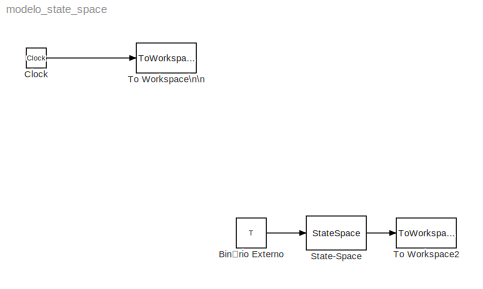
MODEL modelo_state_space
KIND model
BLOCK [Constant] Binário Externo
  SID = 20
  Value = T
BLOCK [Clock] Clock
  SID = 1
BLOCK [StateSpace] State-Space
  A = A
  B = B
  C = C
  D = [0; 0]
  Ports = [1, 1]
  SID = 14
  X0 = x0
BLOCK [ToWorkspace] To Workspace2
  FixptAsFi = on
  MaxDataPoints = inf
  Ports = [1]
  SID = 10
  SampleTime = -1
  Save2DSignal = 3-D array (concatenate along third dimension)
  VariableName = y
BLOCK [ToWorkspace] To Workspace\n\n
  FixptAsFi = on
  MaxDataPoints = inf
  Ports = [1]
  SID = 2
  SampleTime = -1
  Save2DSignal = 3-D array (concatenate along third dimension)
  VariableName = t
LINE Binário Externo:1 -> State-Space:1
LINE Clock:1 -> To Workspace\n\n:1
LINE State-Space:1 -> To Workspace2:1
